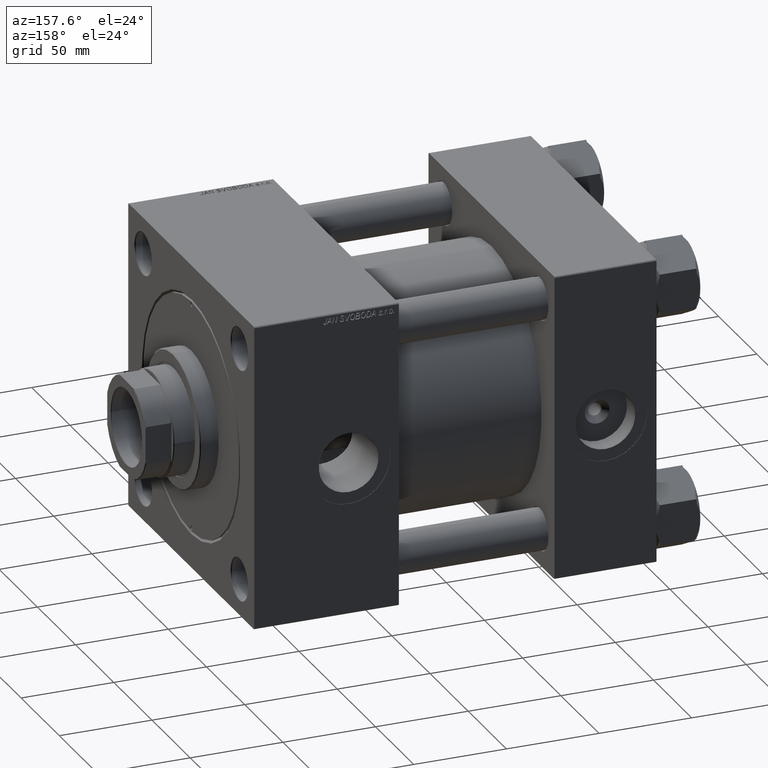
[diagram: clean part render]
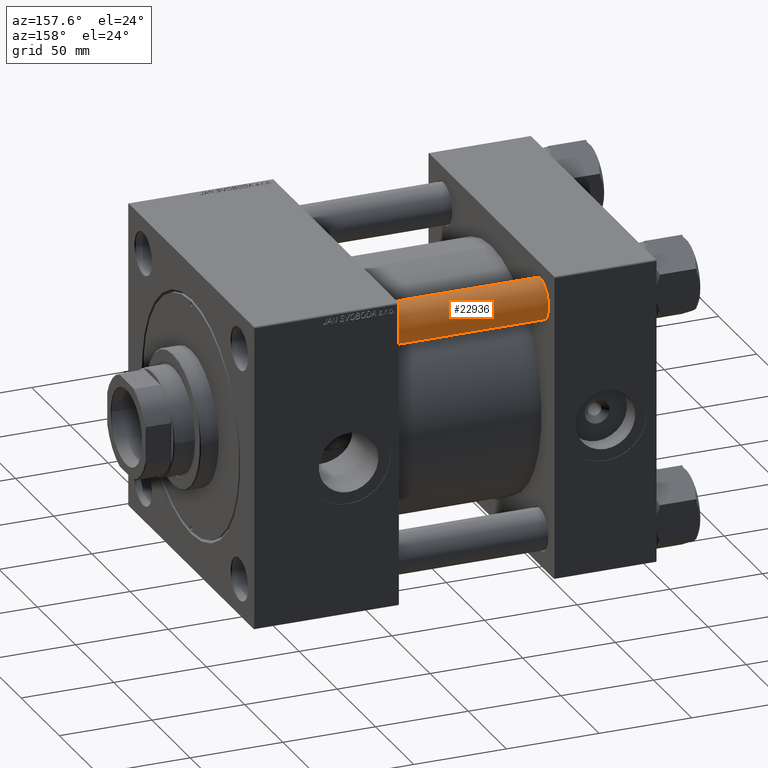
[diagram: same view with one face highlighted and labeled with its STEP entity id]
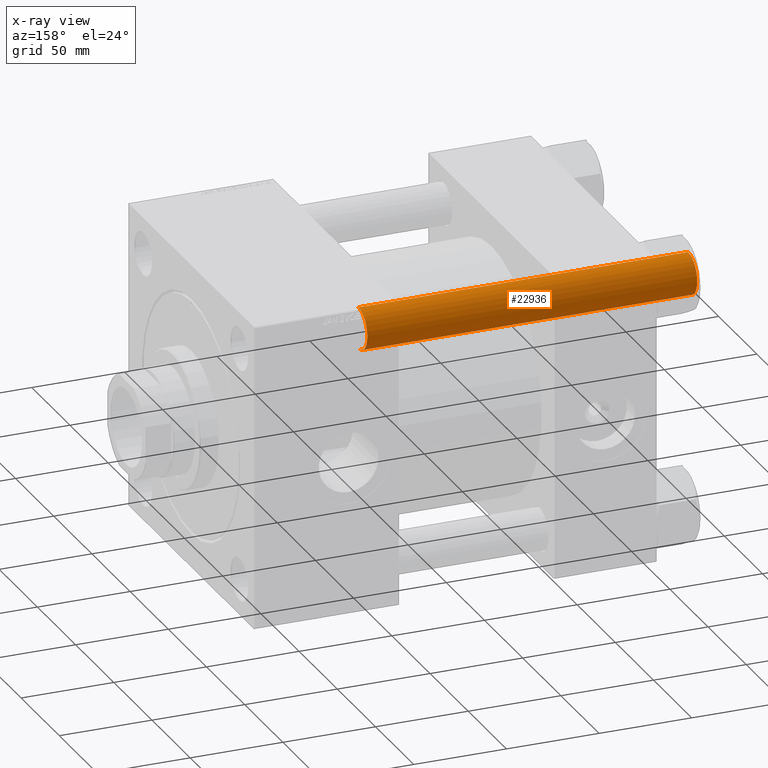
[diagram: x-ray of the same camera — body ghosted, the highlighted face saturated]
A machine part, auxiliary view. The second image highlights one B-rep face of the part: STEP entity #22936.
The next image is the same camera in x-ray: the body ghosted, the highlighted face saturated — about 0% of this face is hidden behind the body in this view.
In plain terms, the highlighted cylindrical surface (edge-blend (fillet) strip) has radius 11 mm, axis along (-1, 0, 0).
Its self-contained STEP definition (entity closure, byte-faithful):
#666 = AXIS2_PLACEMENT_3D ( 'NONE', #49034, #44660, #9898 ) ;
#3111 = CARTESIAN_POINT ( 'NONE',  ( 11.00000000000000000, 1.347111479062088207E-15, 0.5000000000001392220 ) ) ;
#5013 = CIRCLE ( 'NONE', #33799, 11.00000000000000000 ) ;
#6643 = VECTOR ( 'NONE', #9172, 1000.000000000000000 ) ;
#6723 = VECTOR ( 'NONE', #27796, 1000.000000000000000 ) ;
#8754 = DIRECTION ( 'NONE',  ( -0.000000000000000000, -0.000000000000000000, -1.000000000000000000 ) ) ;
#8960 = ORIENTED_EDGE ( 'NONE', *, *, #25506, .F. ) ;
#9018 = FACE_OUTER_BOUND ( 'NONE', #46860, .T. ) ;
#9172 = DIRECTION ( 'NONE',  ( -0.000000000000000000, -0.000000000000000000, -1.000000000000000000 ) ) ;
#9898 = DIRECTION ( 'NONE',  ( 1.000000000000000000, 0.000000000000000000, 0.000000000000000000 ) ) ;
#11871 = VERTEX_POINT ( 'NONE', #3111 ) ;
#12107 = CARTESIAN_POINT ( 'NONE',  ( -11.00000000000000000, 0.000000000000000000, 179.0000000000000000 ) ) ;
#12945 = CARTESIAN_POINT ( 'NONE',  ( 0.000000000000000000, 0.000000000000000000, 178.5000000000000853 ) ) ;
#13589 = VERTEX_POINT ( 'NONE', #42748 ) ;
#14060 = LINE ( 'NONE', #17665, #6643 ) ;
#14640 = ORIENTED_EDGE ( 'NONE', *, *, #22625, .T. ) ;
#17665 = CARTESIAN_POINT ( 'NONE',  ( 11.00000000000000000, 1.347111479062088207E-15, 179.0000000000000000 ) ) ;
#19900 = DIRECTION ( 'NONE',  ( 0.000000000000000000, 0.000000000000000000, -1.000000000000000000 ) ) ;
#20100 = CYLINDRICAL_SURFACE ( 'NONE', #41352, 11.00000000000000000 ) ;
#21629 = EDGE_CURVE ( 'NONE', #37165, #11871, #14060, .T. ) ;
#22625 = EDGE_CURVE ( 'NONE', #48798, #37165, #5013, .T. ) ;
#22851 = CIRCLE ( 'NONE', #666, 11.00000000000000000 ) ;
#22936 = ADVANCED_FACE ( 'NONE', ( #9018 ), #20100, .T. ) ;
#24189 = LINE ( 'NONE', #12107, #6723 ) ;
#25506 = EDGE_CURVE ( 'NONE', #48798, #13589, #24189, .T. ) ;
#25840 = ORIENTED_EDGE ( 'NONE', *, *, #45125, .T. ) ;
#27796 = DIRECTION ( 'NONE',  ( -0.000000000000000000, -0.000000000000000000, -1.000000000000000000 ) ) ;
#28578 = CARTESIAN_POINT ( 'NONE',  ( 0.000000000000000000, 0.000000000000000000, 179.0000000000000000 ) ) ;
#32502 = DIRECTION ( 'NONE',  ( 1.000000000000000000, 0.000000000000000000, 0.000000000000000000 ) ) ;
#33799 = AXIS2_PLACEMENT_3D ( 'NONE', #12945, #19900, #32502 ) ;
#34508 = CARTESIAN_POINT ( 'NONE',  ( -11.00000000000000000, 0.000000000000000000, 178.5000000000000853 ) ) ;
#36060 = DIRECTION ( 'NONE',  ( -1.000000000000000000, 0.000000000000000000, 0.000000000000000000 ) ) ;
#37165 = VERTEX_POINT ( 'NONE', #49845 ) ;
#37214 = ORIENTED_EDGE ( 'NONE', *, *, #21629, .T. ) ;
#41352 = AXIS2_PLACEMENT_3D ( 'NONE', #28578, #8754, #36060 ) ;
#42748 = CARTESIAN_POINT ( 'NONE',  ( -11.00000000000000000, 0.000000000000000000, 0.5000000000001392220 ) ) ;
#44660 = DIRECTION ( 'NONE',  ( -0.000000000000000000, -0.000000000000000000, 1.000000000000000000 ) ) ;
#45125 = EDGE_CURVE ( 'NONE', #11871, #13589, #22851, .T. ) ;
#46860 = EDGE_LOOP ( 'NONE', ( #14640, #37214, #25840, #8960 ) ) ;
#48798 = VERTEX_POINT ( 'NONE', #34508 ) ;
#49034 = CARTESIAN_POINT ( 'NONE',  ( 0.000000000000000000, 0.000000000000000000, 0.5000000000001392220 ) ) ;
#49845 = CARTESIAN_POINT ( 'NONE',  ( 11.00000000000000000, 1.347111479062088207E-15, 178.5000000000000853 ) ) ;